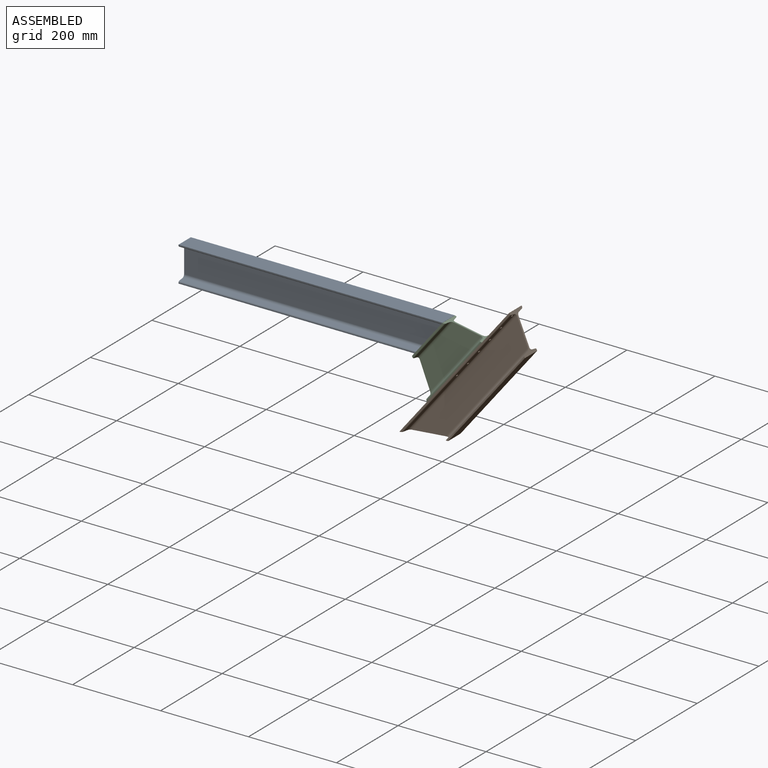
[diagram: assembled view]
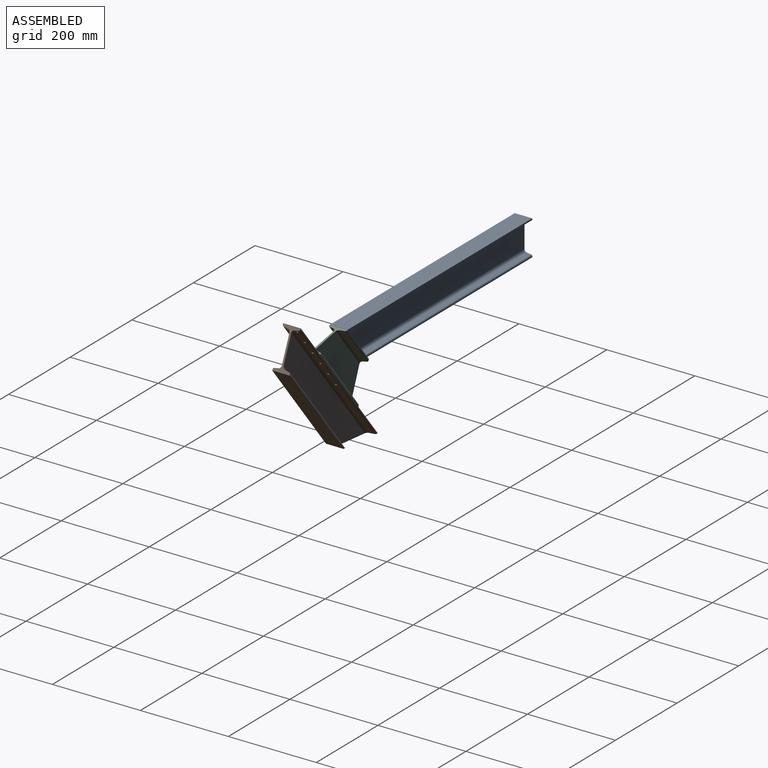
[diagram: assembled view, second angle]
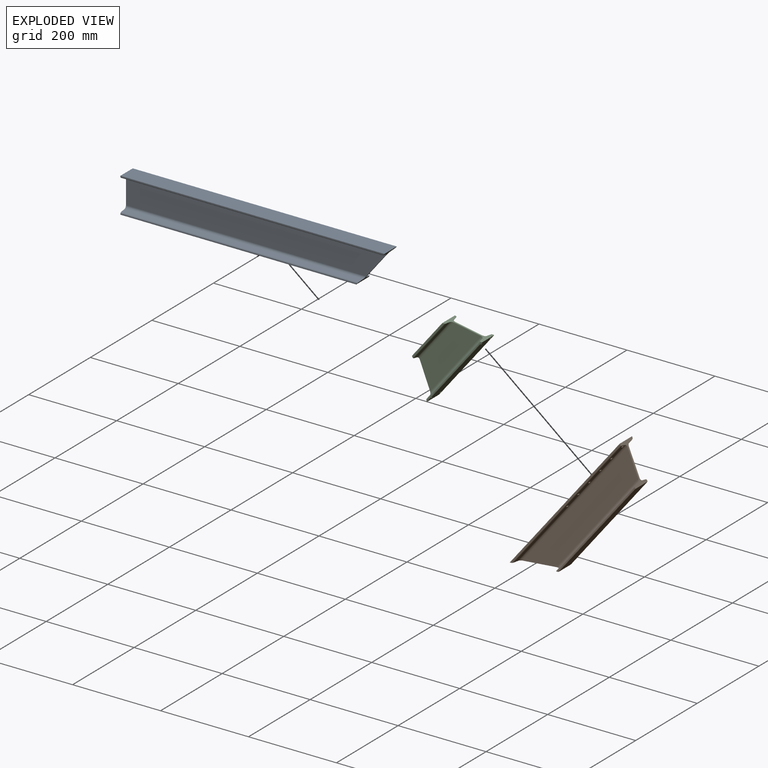
[diagram: exploded view]
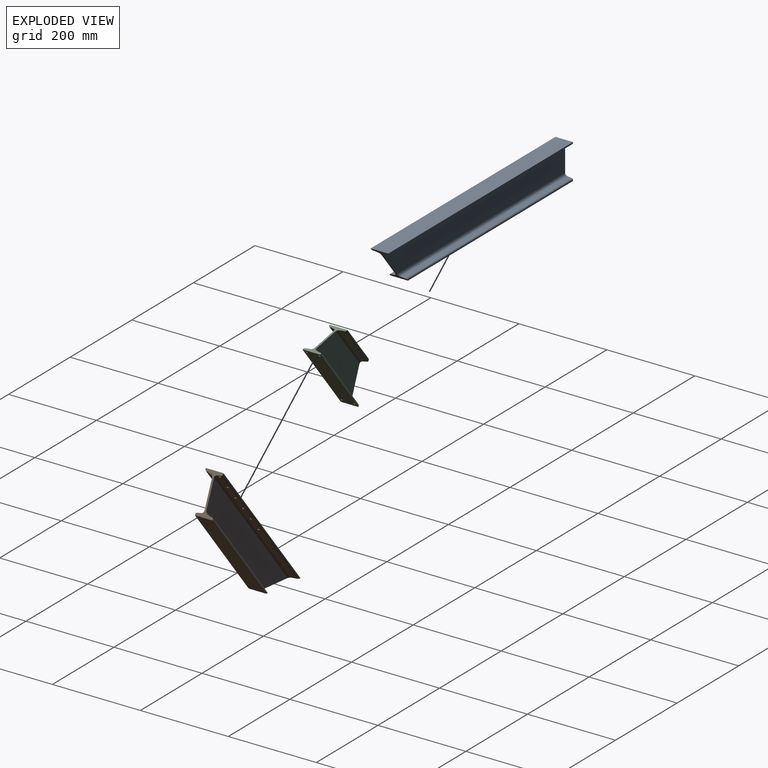
[diagram: exploded view, second angle]
ASSEMBLY  parts=3 mates=2
PART A: 23 faces, bbox 600x40x80 mm
  f0: plane 600x1.96mm, normal (0,1,0), area 1175.5mm2, adj f2,f7,f18,f19,f22
  f1: plane 537.55x1.96mm, normal (0,1,0), area 1052.6mm2, adj f15,f16,f18,f22
  f2: plane 40x0.34mm, normal (1,0,0), area 13.4mm2, adj f0,f19,f20,f22
  f3: cylinder r=6mm len=546.09mm, axis (1,0,0), area 4581.5mm2, adj f4,f17,f18,f22
  f4: plane 590.16x54.83mm, normal (0,1,0), area 31150.1mm2, adj f3,f5,f18,f22
  f5: cylinder r=6mm len=594.91mm, axis (1,0,0), area 5001.5mm2, adj f4,f6,f18,f22
  f6: plane 596.32x10.48mm, normal (0,0.16,-0.99), area 6327.6mm2, adj f5,f7,f18,f22
  f7: cylinder r=3mm len=598.69mm, axis (1,0,0), area 2518.6mm2, adj f0,f6,f18,f22
  f8: cylinder r=3mm len=598.69mm, axis (1,0,0), area 2518.6mm2, adj f9,f18,f20,f22
  f9: plane 596.32x10.48mm, normal (0,-0.16,-0.99), area 6327.6mm2, adj f8,f10,f18,f22
  f10: cylinder r=6mm len=594.91mm, axis (1,0,0), area 5001.5mm2, adj f9,f11,f18,f22
  f11: plane 590.16x54.83mm, normal (0,-1,0), area 31150.1mm2, adj f10,f12,f18,f22
  f12: cylinder r=6mm len=546.09mm, axis (1,0,0), area 4581.5mm2, adj f11,f13,f18,f22
  f13: plane 541.33x10.48mm, normal (0,-0.16,0.99), area 5743.5mm2, adj f12,f14,f18,f22
  f14: cylinder r=3mm len=539.93mm, axis (1,0,0), area 2272.9mm2, adj f13,f18,f21,f22
  f15: plane 535.97x40mm, normal (0,0,-1), area 21439mm2, adj f1,f18,f21,f22
  f16: cylinder r=3mm len=539.93mm, axis (1,0,0), area 2272.9mm2, adj f1,f17,f18,f22
  f17: plane 541.33x10.48mm, normal (0,0.16,0.99), area 5743.5mm2, adj f3,f16,f18,f22
  f18: plane 80x40mm, normal (-1,0,0), area 767.8mm2, adj f0,f1,f3,f4,f5,f6,f7,f8
  f19: plane 600x40mm, normal (0,0,1), area 24000mm2, adj f0,f2,f18,f20
  f20: plane 600x1.96mm, normal (0,-1,0), area 1175.5mm2, adj f2,f8,f18,f19,f22
  f21: plane 537.55x1.96mm, normal (0,-1,0), area 1052.6mm2, adj f14,f15,f18,f22
  f22: plane 79.67x64.03mm, normal (0.78,0,-0.63), area 967.8mm2, adj f0,f1,f2,f3,f4,f5,f6,f7
PART B: 34 faces, bbox 399.4x40.2x80.2 mm
  f0: plane 399.19x1.96mm, normal (0,1,0), area 779.9mm2, adj f6,f7,f20,f21
  f1: plane 281.41x1.96mm, normal (0,1,0), area 548.9mm2, adj f15,f16,f20,f21
  f2: cylinder r=6mm len=297.44mm, axis (1,0,0), area 2463.2mm2, adj f3,f17,f20,f21
  f3: plane 380.2x54.83mm, normal (0,1,0), area 18577.4mm2, adj f2,f4,f20,f21
  f4: cylinder r=6mm len=389.13mm, axis (1,0,0), area 3251.9mm2, adj f3,f5,f20,f21
  f5: plane 391.76x10.48mm, normal (0,0.16,-0.99), area 4028.5mm2, adj f4,f6,f20,f21,f22,f24,f26,f28
  f6: cylinder r=3mm len=396.23mm, axis (1,0,0), area 1659.5mm2, adj f0,f5,f20,f21
  f7: plane 399.19x40mm, normal (0,0,1), area 15732mm2, adj f0,f18,f20,f21,f22,f23,f24,f25
  f8: cylinder r=3mm len=396.23mm, axis (1,0,0), area 1659.5mm2, adj f9,f18,f20,f21
  f9: plane 391.94x10.65mm, normal (0,-0.16,-0.99), area 4028.5mm2, adj f8,f10,f20,f21,f23,f25,f27,f29
  f10: cylinder r=6mm len=389.13mm, axis (1,0,0), area 3251.9mm2, adj f9,f11,f20,f21
  f11: plane 380.2x54.83mm, normal (0,-1,0), area 18577.4mm2, adj f10,f12,f20,f21
  f12: cylinder r=6mm len=297.44mm, axis (1,0,0), area 2463.2mm2, adj f11,f13,f20,f21
  f13: plane 288.51x10.48mm, normal (0,-0.16,0.99), area 3051mm2, adj f12,f14,f20,f21
  f14: cylinder r=3mm len=285.87mm, axis (1,0,0), area 1198mm2, adj f13,f19,f20,f21
  f15: plane 278.45x40mm, normal (0,0,-1), area 11137.9mm2, adj f1,f19,f20,f21
  f16: cylinder r=3mm len=285.87mm, axis (1,0,0), area 1198mm2, adj f1,f17,f20,f21
  f17: plane 288.51x10.48mm, normal (0,0.16,0.99), area 3051mm2, adj f2,f16,f20,f21
  f18: plane 399.19x1.96mm, normal (0,-1,0), area 779.9mm2, adj f7,f8,f20,f21
  f19: plane 281.41x1.96mm, normal (0,-1,0), area 548.9mm2, adj f14,f15,f20,f21
  f20: plane 80x43.23mm, normal (0.88,0,-0.48), area 872.7mm2, adj f0,f1,f2,f3,f4,f5,f6,f7
  f21: plane 80x77.51mm, normal (-0.72,0,-0.7), area 1069mm2, adj f0,f1,f2,f3,f4,f5,f6,f7
  f22: cylinder r=2.5mm len=6.37mm, axis (0,0,-1), area 93.5mm2, adj f5,f7
  f23: cylinder r=2.5mm len=6.49mm, axis (0,0,-1), area 95.3mm2, adj f7,f9
  f24: cylinder r=2.5mm len=6.37mm, axis (0,0,-1), area 93.5mm2, adj f5,f7
  f25: cylinder r=2.5mm len=6.49mm, axis (0,0,-1), area 95.3mm2, adj f7,f9
  f26: cylinder r=2.5mm len=6.37mm, axis (0,0,-1), area 93.5mm2, adj f5,f7
  f27: cylinder r=2.5mm len=6.49mm, axis (0,0,-1), area 95.3mm2, adj f7,f9
  f28: cylinder r=2.5mm len=6.37mm, axis (0,0,-1), area 93.5mm2, adj f5,f7
  f29: cylinder r=2.5mm len=6.49mm, axis (0,0,-1), area 95.3mm2, adj f7,f9
  f30: cylinder r=2.5mm len=6.37mm, axis (0,0,-1), area 93.5mm2, adj f5,f7
  f31: cylinder r=2.5mm len=6.49mm, axis (0,0,-1), area 95.3mm2, adj f7,f9
  f32: cylinder r=2.5mm len=6.37mm, axis (0,0,-1), area 93.5mm2, adj f5,f7
  f33: cylinder r=2.5mm len=6.49mm, axis (0,0,-1), area 95.3mm2, adj f7,f9
PART C: 27 faces, bbox 199.1x40x80 mm
  f0: cylinder r=3mm len=197.09mm, axis (1,0,0), area 822.4mm2, adj f2,f11,f21,f22,f24,f26
  f1: plane 199.15x1.96mm, normal (0,1,0), area 388.6mm2, adj f5,f10,f20,f21,f22
  f2: plane 199.15x1.96mm, normal (0,-1,0), area 388.6mm2, adj f0,f5,f20,f21,f22
  f3: plane 112.84x1.96mm, normal (0,-1,0), area 219.1mm2, adj f16,f17,f21,f22
  f4: plane 112.84x1.96mm, normal (0,1,0), area 219.1mm2, adj f17,f18,f21,f22
  f5: plane 40x0.22mm, normal (1,0,0), area 8.7mm2, adj f1,f2,f20,f22
  f6: cylinder r=6mm len=124.6mm, axis (1,0,0), area 1017.6mm2, adj f7,f19,f21,f22
  f7: plane 185.33x54.83mm, normal (0,1,0), area 8496.7mm2, adj f6,f8,f21,f22
  f8: cylinder r=6mm len=191.88mm, axis (1,0,0), area 1596.3mm2, adj f7,f9,f21,f22
  f9: plane 193.82x10.48mm, normal (0,0.16,-0.99), area 2008.9mm2, adj f8,f10,f21,f22,f23,f25
  f10: cylinder r=3mm len=197.09mm, axis (1,0,0), area 822.8mm2, adj f1,f9,f21,f22
  f11: plane 193.82x10.48mm, normal (0,-0.16,-0.99), area 2009.3mm2, adj f0,f12,f21,f22,f24,f26
  f12: cylinder r=6mm len=191.88mm, axis (1,0,0), area 1596.3mm2, adj f11,f13,f21,f22
  f13: plane 185.33x54.83mm, normal (0,-1,0), area 8496.7mm2, adj f12,f14,f21,f22
  f14: cylinder r=6mm len=124.6mm, axis (1,0,0), area 1017.6mm2, adj f13,f15,f21,f22
  f15: plane 118.05x10.48mm, normal (0,-0.16,0.99), area 1243.8mm2, adj f14,f16,f21,f22
  f16: cylinder r=3mm len=116.11mm, axis (1,0,0), area 484.2mm2, adj f3,f15,f21,f22
  f17: plane 110.67x40mm, normal (0,0,-1), area 4426.6mm2, adj f3,f4,f21,f22
  f18: cylinder r=3mm len=116.11mm, axis (1,0,0), area 484.2mm2, adj f4,f19,f21,f22
  f19: plane 118.05x10.48mm, normal (0,0.16,0.99), area 1243.8mm2, adj f6,f18,f21,f22
  f20: plane 199.15x40mm, normal (0,0,1), area 7887.3mm2, adj f1,f2,f5,f21,f23,f24,f25,f26
  f21: plane 80x45.37mm, normal (-0.87,0,-0.49), area 882.6mm2, adj f0,f1,f2,f3,f4,f6,f7,f8
  f22: plane 79.78x43.12mm, normal (0.88,0,-0.48), area 862.9mm2, adj f0,f1,f2,f3,f4,f5,f6,f7
  f23: cylinder r=2.5mm len=5.91mm, axis (0,0,-1), area 86.3mm2, adj f9,f20
  f24: cylinder r=2.5mm len=5.73mm, axis (0,0,-1), area 83.4mm2, adj f0,f11,f20
  f25: cylinder r=2.5mm len=5.91mm, axis (0,0,-1), area 86.3mm2, adj f9,f20
  f26: cylinder r=2.5mm len=5.73mm, axis (0,0,-1), area 83.4mm2, adj f0,f11,f20
PLACE A t=(279.73,105.53,-97.48)mm
PLACE B rot(axis=(0,-1,0),51.2deg) t=(662,105.53,-198.23)mm
PLACE C rot(axis=(0.9,0,0.43),180deg) t=(607.85,105.53,-137.91)mm
MATE fastened A.f22 <-> C.f17  axis (0.78,0,-0.63) through (620.9,105.53,-57.81)mm
MATE planar B.f7 <-> C.f20  axis (-0.78,0,0.63) through (647.03,105.53,-153.01)mm
